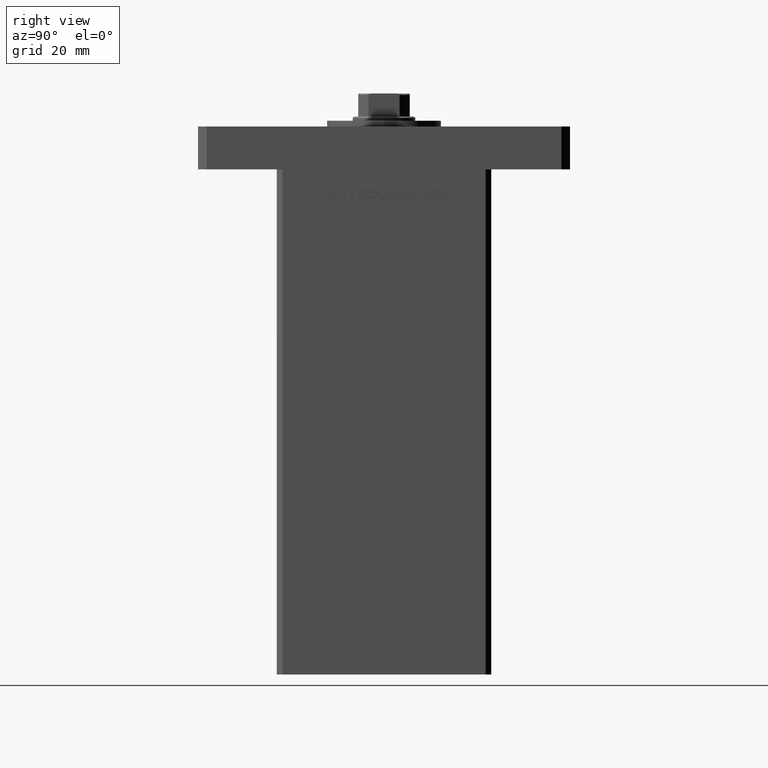
[diagram: clean part render]
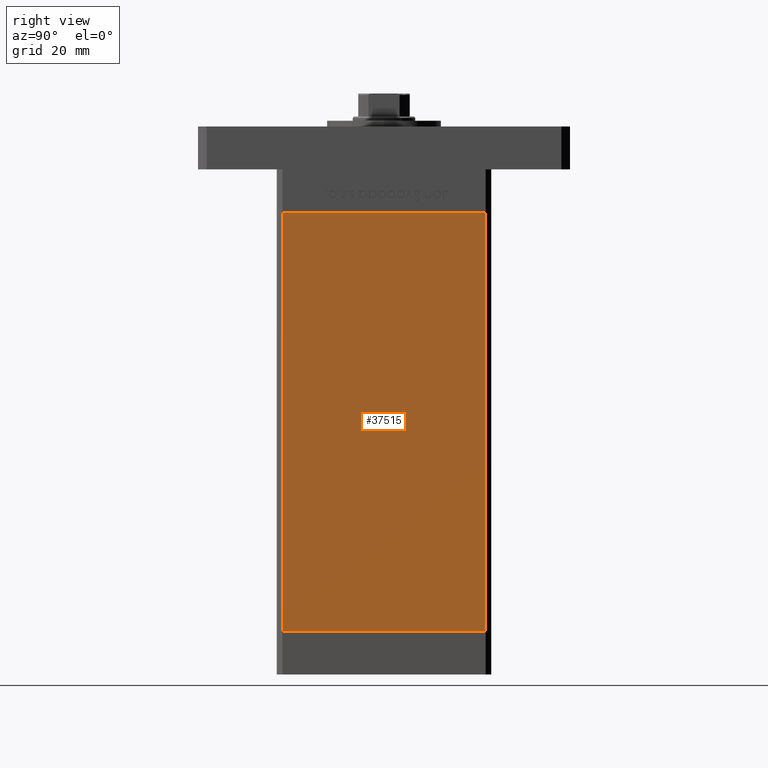
[diagram: same view with one face highlighted and labeled with its STEP entity id]
A machine part, right view. The second image highlights one B-rep face of the part: STEP entity #37515.
In plain terms, the highlighted planar face has unit normal (1, -0, 0).
Its self-contained STEP definition (entity closure, byte-faithful):
#815 = VECTOR ( 'NONE', #41037, 1000.000000000000000 ) ;
#1262 = CARTESIAN_POINT ( 'NONE',  ( 42.50000000000000711, 35.50000000000001421, 0.000000000000000000 ) ) ;
#5987 = VERTEX_POINT ( 'NONE', #1262 ) ;
#7934 = LINE ( 'NONE', #16362, #815 ) ;
#9533 = VECTOR ( 'NONE', #26928, 1000.000000000000000 ) ;
#9720 = ORIENTED_EDGE ( 'NONE', *, *, #24853, .T. ) ;
#10105 = VERTEX_POINT ( 'NONE', #20158 ) ;
#11822 = PLANE ( 'NONE',  #49347 ) ;
#14349 = EDGE_CURVE ( 'NONE', #5987, #51657, #7934, .T. ) ;
#15365 = DIRECTION ( 'NONE',  ( 1.000000000000000000, -2.931927001650941360E-16, 0.000000000000000000 ) ) ;
#15577 = CARTESIAN_POINT ( 'NONE',  ( 42.50000000000000711, 35.50000000000001421, 146.5000000000000000 ) ) ;
#15668 = ORIENTED_EDGE ( 'NONE', *, *, #14349, .F. ) ;
#16362 = CARTESIAN_POINT ( 'NONE',  ( 42.50000000000000711, 35.50000000000001421, 0.000000000000000000 ) ) ;
#17926 = VECTOR ( 'NONE', #44053, 1000.000000000000000 ) ;
#18575 = LINE ( 'NONE', #18845, #32650 ) ;
#18845 = CARTESIAN_POINT ( 'NONE',  ( 42.49999999999998579, -35.50000000000000711, 146.5000000000000000 ) ) ;
#20158 = CARTESIAN_POINT ( 'NONE',  ( 42.49999999999998579, -35.50000000000000711, 146.5000000000000000 ) ) ;
#23079 = EDGE_LOOP ( 'NONE', ( #15668, #42489, #24310, #9720 ) ) ;
#24310 = ORIENTED_EDGE ( 'NONE', *, *, #24958, .T. ) ;
#24853 = EDGE_CURVE ( 'NONE', #10105, #51657, #18575, .T. ) ;
#24958 = EDGE_CURVE ( 'NONE', #50980, #10105, #40524, .T. ) ;
#26928 = DIRECTION ( 'NONE',  ( -0.000000000000000000, -0.000000000000000000, -1.000000000000000000 ) ) ;
#27865 = CARTESIAN_POINT ( 'NONE',  ( 42.50000000000000711, 35.50000000000001421, 146.5000000000000000 ) ) ;
#32650 = VECTOR ( 'NONE', #35115, 1000.000000000000000 ) ;
#33263 = CARTESIAN_POINT ( 'NONE',  ( 42.50000000000000711, 35.50000000000001421, 146.5000000000000000 ) ) ;
#35115 = DIRECTION ( 'NONE',  ( -0.000000000000000000, -0.000000000000000000, -1.000000000000000000 ) ) ;
#37515 = ADVANCED_FACE ( 'NONE', ( #48442 ), #11822, .T. ) ;
#39538 = EDGE_CURVE ( 'NONE', #50980, #5987, #40191, .T. ) ;
#40191 = LINE ( 'NONE', #40452, #9533 ) ;
#40452 = CARTESIAN_POINT ( 'NONE',  ( 42.50000000000000711, 35.50000000000001421, 146.5000000000000000 ) ) ;
#40524 = LINE ( 'NONE', #15577, #17926 ) ;
#41037 = DIRECTION ( 'NONE',  ( -2.931927001650941360E-16, -1.000000000000000000, 0.000000000000000000 ) ) ;
#42489 = ORIENTED_EDGE ( 'NONE', *, *, #39538, .F. ) ;
#44053 = DIRECTION ( 'NONE',  ( -2.931927001650941360E-16, -1.000000000000000000, 0.000000000000000000 ) ) ;
#44396 = DIRECTION ( 'NONE',  ( 2.931927001650941360E-16, 1.000000000000000000, 0.000000000000000000 ) ) ;
#44476 = CARTESIAN_POINT ( 'NONE',  ( 42.49999999999998579, -35.50000000000000711, 0.000000000000000000 ) ) ;
#48442 = FACE_OUTER_BOUND ( 'NONE', #23079, .T. ) ;
#49347 = AXIS2_PLACEMENT_3D ( 'NONE', #27865, #15365, #44396 ) ;
#50980 = VERTEX_POINT ( 'NONE', #33263 ) ;
#51657 = VERTEX_POINT ( 'NONE', #44476 ) ;